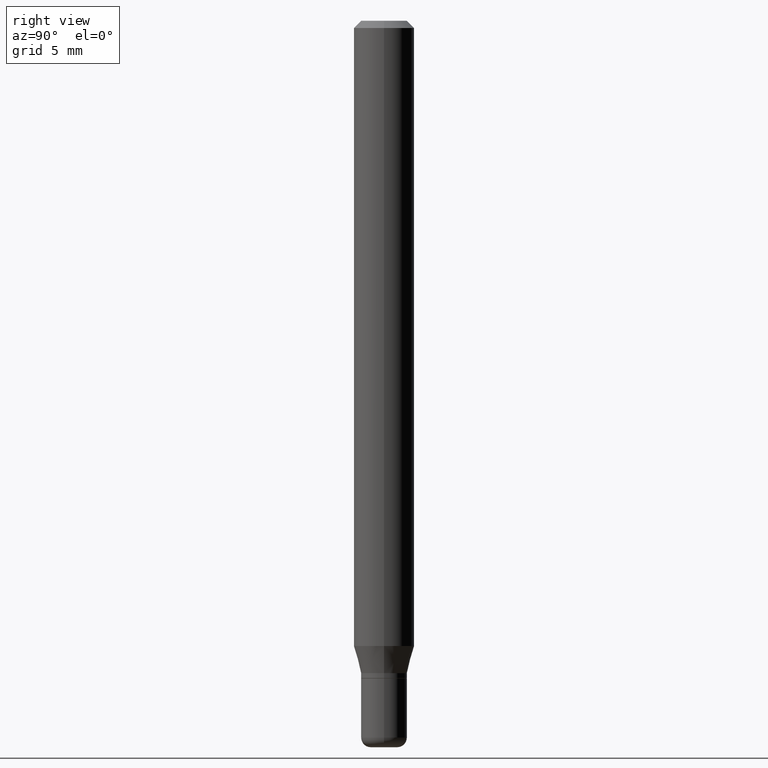
[diagram: clean part render]
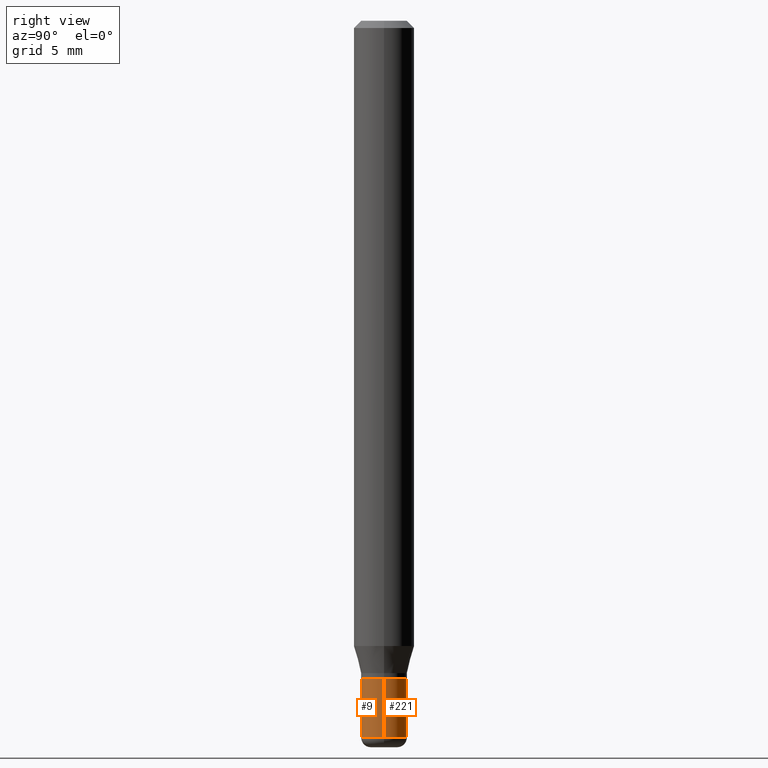
[diagram: same view with one multi-face feature highlighted, each face labeled with its STEP entity id]
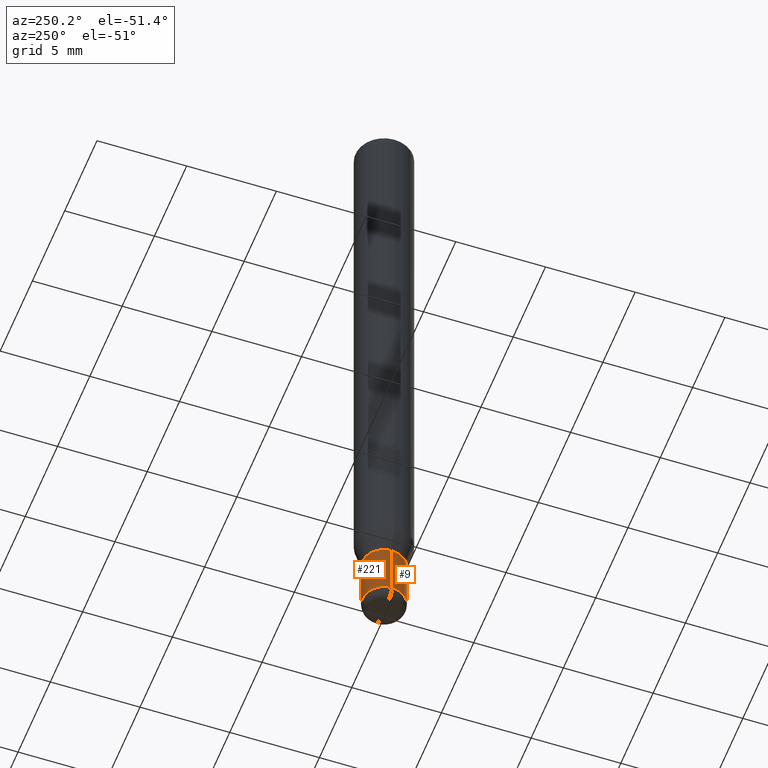
[diagram: same view with one multi-face feature highlighted, each face labeled with its STEP entity id]
A machine part, right view. The highlighted faces form ONE feature: a constant-radius fillet chain: 2 tangent blend faces with common blend radius 1.2065 mm. The faces share edges in the B-rep.
A second angle (auxiliary view) of the same feature is appended — it is thin or edge-on in the first view.
Their STEP definitions:
[1] entity #9 (Cylinder):
#6 = CARTESIAN_POINT ( 'NONE',  ( 3.619293833154002365E-29, -5.167392381487854879E-15, -1.479999999999999982 ) ) ;
#9 = ADVANCED_FACE ( 'NONE', ( #445 ), #11, .T. ) ;
#11 = CYLINDRICAL_SURFACE ( 'NONE', #173, 0.04750000000000000749 ) ;
#12 = CIRCLE ( 'NONE', #302, 0.04749999999999999362 ) ;
#16 = EDGE_CURVE ( 'NONE', #499, #326, #12, .T. ) ;
#37 = DIRECTION ( 'NONE',  ( 1.000000000000000000, -6.982962677686258033E-15, 0.000000000000000000 ) ) ;
#63 = DIRECTION ( 'NONE',  ( -2.445468806185136597E-29, 3.491481338843145583E-15, 1.000000000000000000 ) ) ;
#64 = CIRCLE ( 'NONE', #236, 0.04750000000000002137 ) ;
#68 = CARTESIAN_POINT ( 'NONE',  ( 0.04750000000000002137, -5.499083108677952390E-15, -1.479999999999999982 ) ) ;
#84 = EDGE_CURVE ( 'NONE', #510, #499, #401, .T. ) ;
#97 = ORIENTED_EDGE ( 'NONE', *, *, #361, .T. ) ;
#121 = DIRECTION ( 'NONE',  ( -2.445468806185136597E-29, 3.491481338843145583E-15, 1.000000000000000000 ) ) ;
#130 = ORIENTED_EDGE ( 'NONE', *, *, #300, .T. ) ;
#143 = CARTESIAN_POINT ( 'NONE',  ( 3.319723904396323737E-29, -4.739685917479570727E-15, -1.357500000000000151 ) ) ;
#144 = DIRECTION ( 'NONE',  ( 1.000000000000000000, -6.982962677686261977E-15, 0.000000000000000000 ) ) ;
#173 = AXIS2_PLACEMENT_3D ( 'NONE', #263, #63, #369 ) ;
#200 = CARTESIAN_POINT ( 'NONE',  ( 0.04749999999999999362, -5.071376644669668238E-15, -1.357500000000000151 ) ) ;
#213 = CARTESIAN_POINT ( 'NONE',  ( 0.04750000000000000749, -3.316907271900977082E-16, 2.316183968503069432E-30 ) ) ;
#217 = CARTESIAN_POINT ( 'NONE',  ( -0.04750000000000000749, 3.375077994860476415E-16, -2.336494167871080260E-30 ) ) ;
#229 = VECTOR ( 'NONE', #496, 39.37007874015748143 ) ;
#236 = AXIS2_PLACEMENT_3D ( 'NONE', #6, #121, #37 ) ;
#250 = EDGE_LOOP ( 'NONE', ( #429, #130, #97, #487 ) ) ;
#263 = CARTESIAN_POINT ( 'NONE',  ( 0.000000000000000000, 0.000000000000000000, 0.000000000000000000 ) ) ;
#299 = DIRECTION ( 'NONE',  ( -2.445468806185136597E-29, 3.491481338843145583E-15, 1.000000000000000000 ) ) ;
#300 = EDGE_CURVE ( 'NONE', #510, #518, #64, .T. ) ;
#302 = AXIS2_PLACEMENT_3D ( 'NONE', #143, #299, #144 ) ;
#303 = CARTESIAN_POINT ( 'NONE',  ( -0.04749999999999999362, -4.616031349997665704E-15, -1.357500000000000151 ) ) ;
#326 = VERTEX_POINT ( 'NONE', #200 ) ;
#361 = EDGE_CURVE ( 'NONE', #518, #326, #478, .T. ) ;
#369 = DIRECTION ( 'NONE',  ( 1.000000000000000000, -6.982962677686266711E-15, 4.876176775795934672E-29 ) ) ;
#398 = DIRECTION ( 'NONE',  ( -2.445468806185136877E-29, 3.491481338843145188E-15, 1.000000000000000000 ) ) ;
#401 = LINE ( 'NONE', #217, #229 ) ;
#429 = ORIENTED_EDGE ( 'NONE', *, *, #84, .F. ) ;
#432 = VECTOR ( 'NONE', #398, 39.37007874015748143 ) ;
#445 = FACE_OUTER_BOUND ( 'NONE', #250, .T. ) ;
#478 = LINE ( 'NONE', #213, #432 ) ;
#487 = ORIENTED_EDGE ( 'NONE', *, *, #16, .F. ) ;
#496 = DIRECTION ( 'NONE',  ( -2.445468806185136877E-29, 3.491481338843145188E-15, 1.000000000000000000 ) ) ;
#499 = VERTEX_POINT ( 'NONE', #303 ) ;
#503 = CARTESIAN_POINT ( 'NONE',  ( -0.04750000000000002137, -4.616031349997665704E-15, -1.479999999999999982 ) ) ;
#510 = VERTEX_POINT ( 'NONE', #503 ) ;
#518 = VERTEX_POINT ( 'NONE', #68 ) ;
[2] entity #221 (Cylinder):
#8 = FACE_OUTER_BOUND ( 'NONE', #235, .T. ) ;
#19 = DIRECTION ( 'NONE',  ( 1.000000000000000000, -6.982962677686258033E-15, 0.000000000000000000 ) ) ;
#21 = EDGE_CURVE ( 'NONE', #518, #510, #458, .T. ) ;
#43 = CIRCLE ( 'NONE', #482, 0.04749999999999999362 ) ;
#50 = AXIS2_PLACEMENT_3D ( 'NONE', #402, #291, #322 ) ;
#68 = CARTESIAN_POINT ( 'NONE',  ( 0.04750000000000002137, -5.499083108677952390E-15, -1.479999999999999982 ) ) ;
#81 = ORIENTED_EDGE ( 'NONE', *, *, #414, .F. ) ;
#84 = EDGE_CURVE ( 'NONE', #510, #499, #401, .T. ) ;
#100 = DIRECTION ( 'NONE',  ( -2.445468806185136597E-29, 3.491481338843145583E-15, 1.000000000000000000 ) ) ;
#126 = ORIENTED_EDGE ( 'NONE', *, *, #361, .F. ) ;
#140 = DIRECTION ( 'NONE',  ( -2.445468806185136597E-29, 3.491481338843145583E-15, 1.000000000000000000 ) ) ;
#160 = AXIS2_PLACEMENT_3D ( 'NONE', #267, #140, #19 ) ;
#200 = CARTESIAN_POINT ( 'NONE',  ( 0.04749999999999999362, -5.071376644669668238E-15, -1.357500000000000151 ) ) ;
#213 = CARTESIAN_POINT ( 'NONE',  ( 0.04750000000000000749, -3.316907271900977082E-16, 2.316183968503069432E-30 ) ) ;
#217 = CARTESIAN_POINT ( 'NONE',  ( -0.04750000000000000749, 3.375077994860476415E-16, -2.336494167871080260E-30 ) ) ;
#221 = ADVANCED_FACE ( 'NONE', ( #8 ), #284, .T. ) ;
#229 = VECTOR ( 'NONE', #496, 39.37007874015748143 ) ;
#235 = EDGE_LOOP ( 'NONE', ( #416, #283, #81, #126 ) ) ;
#267 = CARTESIAN_POINT ( 'NONE',  ( 3.619293833154002365E-29, -5.167392381487854879E-15, -1.479999999999999982 ) ) ;
#283 = ORIENTED_EDGE ( 'NONE', *, *, #84, .T. ) ;
#284 = CYLINDRICAL_SURFACE ( 'NONE', #50, 0.04750000000000000749 ) ;
#291 = DIRECTION ( 'NONE',  ( -2.445468806185136597E-29, 3.491481338843145583E-15, 1.000000000000000000 ) ) ;
#303 = CARTESIAN_POINT ( 'NONE',  ( -0.04749999999999999362, -4.616031349997665704E-15, -1.357500000000000151 ) ) ;
#322 = DIRECTION ( 'NONE',  ( 1.000000000000000000, -6.982962677686266711E-15, 4.876176775795934672E-29 ) ) ;
#326 = VERTEX_POINT ( 'NONE', #200 ) ;
#361 = EDGE_CURVE ( 'NONE', #518, #326, #478, .T. ) ;
#398 = DIRECTION ( 'NONE',  ( -2.445468806185136877E-29, 3.491481338843145188E-15, 1.000000000000000000 ) ) ;
#401 = LINE ( 'NONE', #217, #229 ) ;
#402 = CARTESIAN_POINT ( 'NONE',  ( 0.000000000000000000, 0.000000000000000000, 0.000000000000000000 ) ) ;
#414 = EDGE_CURVE ( 'NONE', #326, #499, #43, .T. ) ;
#416 = ORIENTED_EDGE ( 'NONE', *, *, #21, .T. ) ;
#432 = VECTOR ( 'NONE', #398, 39.37007874015748143 ) ;
#446 = CARTESIAN_POINT ( 'NONE',  ( 3.319723904396323737E-29, -4.739685917479570727E-15, -1.357500000000000151 ) ) ;
#458 = CIRCLE ( 'NONE', #160, 0.04750000000000002137 ) ;
#478 = LINE ( 'NONE', #213, #432 ) ;
#482 = AXIS2_PLACEMENT_3D ( 'NONE', #446, #100, #486 ) ;
#486 = DIRECTION ( 'NONE',  ( 1.000000000000000000, -6.982962677686261977E-15, 0.000000000000000000 ) ) ;
#496 = DIRECTION ( 'NONE',  ( -2.445468806185136877E-29, 3.491481338843145188E-15, 1.000000000000000000 ) ) ;
#499 = VERTEX_POINT ( 'NONE', #303 ) ;
#503 = CARTESIAN_POINT ( 'NONE',  ( -0.04750000000000002137, -4.616031349997665704E-15, -1.479999999999999982 ) ) ;
#510 = VERTEX_POINT ( 'NONE', #503 ) ;
#518 = VERTEX_POINT ( 'NONE', #68 ) ;